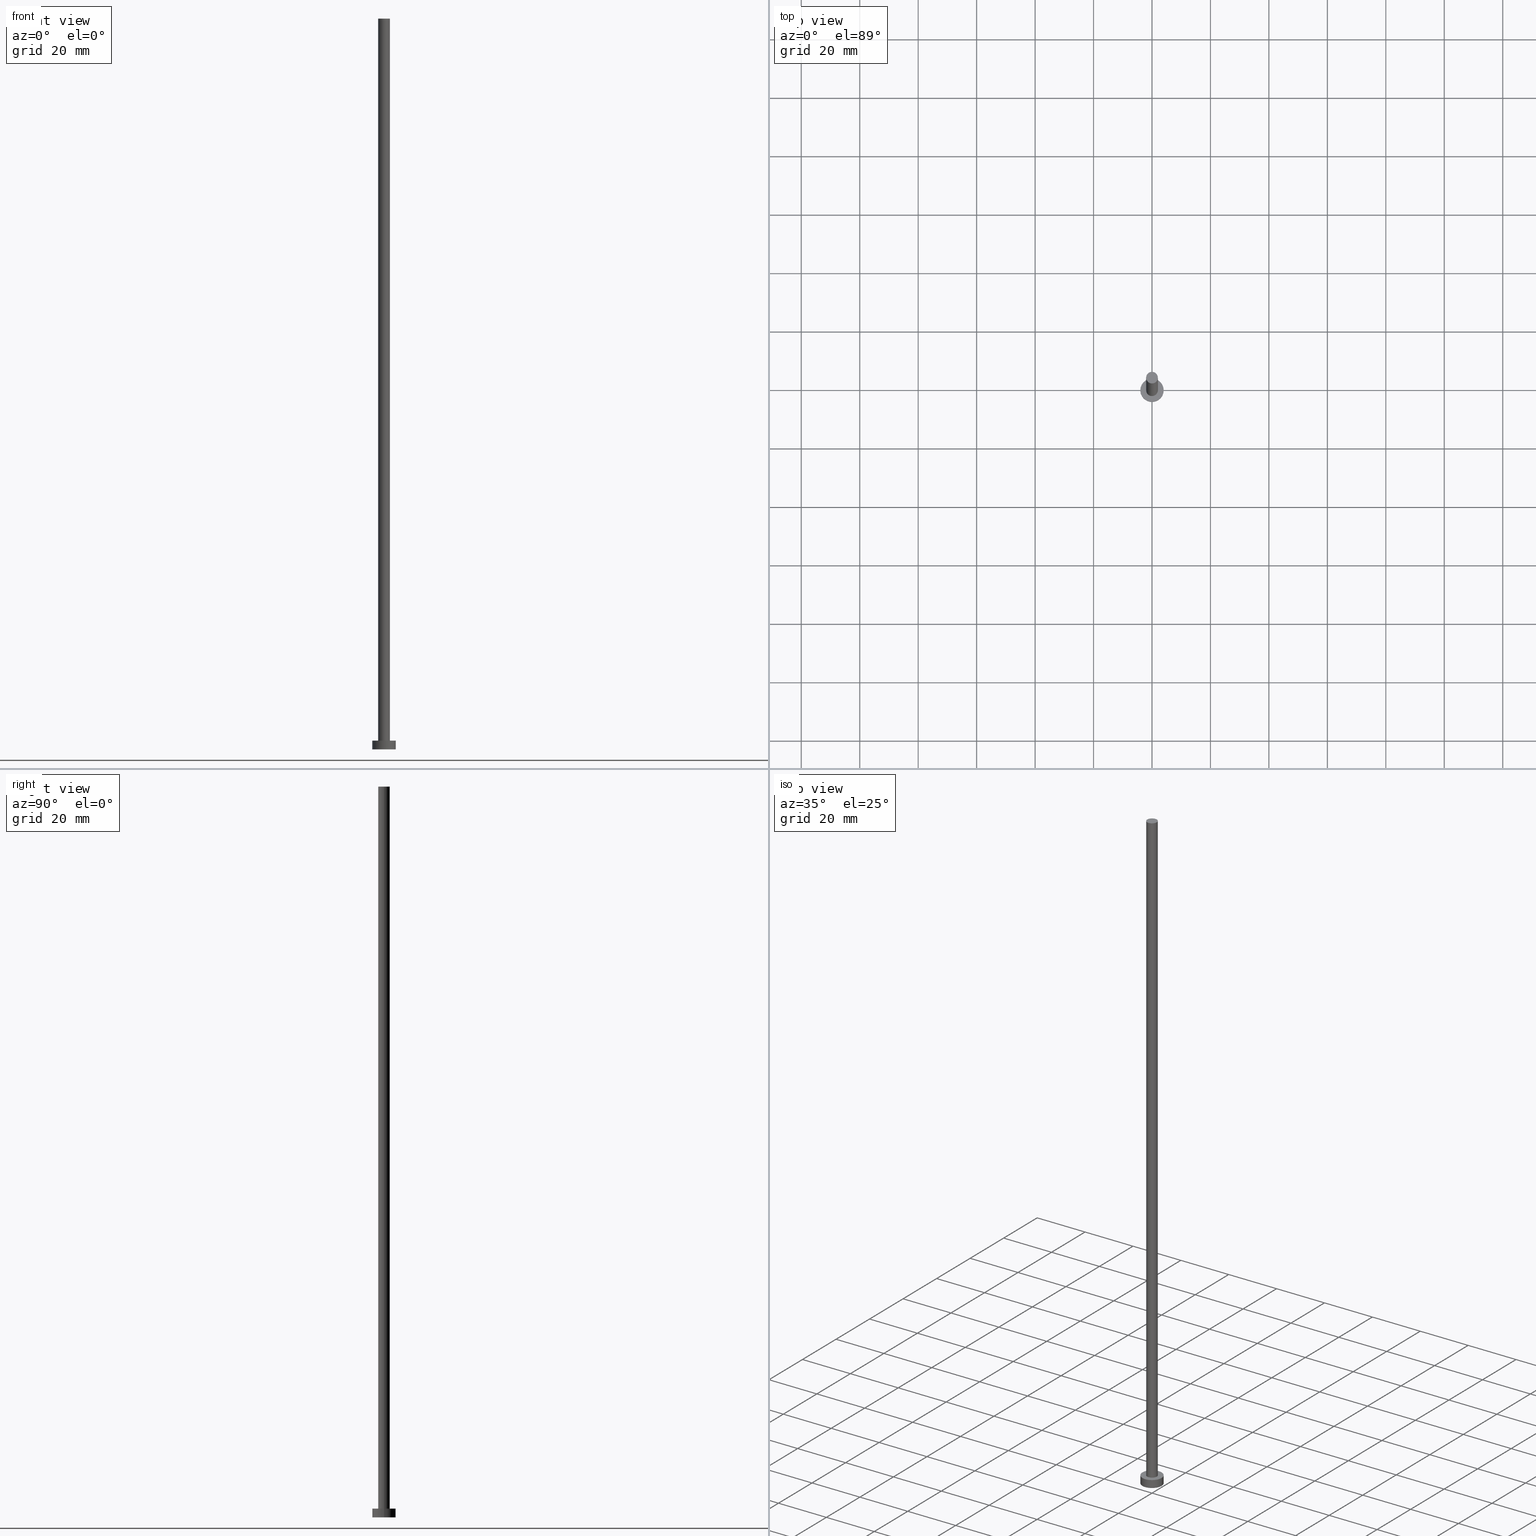
[diagram: canonical four-view strip — front | top / right | iso, engineering-drawing reading convention]
A machine part, canonical four-view strip (front | top / right | iso — engineering-drawing reading convention). The complete STEP part file that produces these views, byte-faithful:
ISO-10303-21;
HEADER;
FILE_DESCRIPTION (( 'STEP AP203' ),
    '1' );
FILE_NAME ('0602.STEP',
    '2023-02-12T12:02:19',
    ( '' ),
    ( '' ),
    'SwSTEP 2.0',
    'SolidWorks 2019',
    '' );
FILE_SCHEMA (( 'CONFIG_CONTROL_DESIGN' ));
ENDSEC;

DATA;
#1 = DIRECTION ( 'NONE',  ( 0.000000000000000000, 0.000000000000000000, 1.000000000000000000 ) ) ;
#2 = DIRECTION ( 'NONE',  ( 1.000000000000000000, 0.000000000000000000, -0.000000000000000000 ) ) ;
#3 = ADVANCED_FACE ( 'NONE', ( #211 ), #88, .T. ) ;
#4 = CYLINDRICAL_SURFACE ( 'NONE', #167, 2.000000000000000000 ) ;
#5 =( NAMED_UNIT ( * ) SI_UNIT ( $, .STERADIAN. ) SOLID_ANGLE_UNIT ( ) );
#6 = VECTOR ( 'NONE', #45, 1000.000000000000000 ) ;
#7 = CIRCLE ( 'NONE', #139, 2.000000000000000000 ) ;
#8 = EDGE_LOOP ( 'NONE', ( #98, #181, #136, #230 ) ) ;
#9 = DATE_TIME_ROLE ( 'creation_date' ) ;
#10 = APPROVAL_DATE_TIME ( #143, #130 ) ;
#11 = CC_DESIGN_PERSON_AND_ORGANIZATION_ASSIGNMENT ( #168, #224, ( #226 ) ) ;
#12 = COORDINATED_UNIVERSAL_TIME_OFFSET ( 1, 0, .AHEAD. ) ;
#13 = PERSON_AND_ORGANIZATION ( #46, #107 ) ;
#14 = CYLINDRICAL_SURFACE ( 'NONE', #171, 4.000000000000000000 ) ;
#15 = DESIGN_CONTEXT ( 'detailed design', #133, 'design' ) ;
#16 = AXIS2_PLACEMENT_3D ( 'NONE', #25, #97, #138 ) ;
#17 = CARTESIAN_POINT ( 'NONE',  ( -4.000000000000000000, 0.000000000000000000, 0.000000000000000000 ) ) ;
#18 = CARTESIAN_POINT ( 'NONE',  ( 2.000000000000000000, 2.449293598294706414E-16, 250.0000000000000000 ) ) ;
#19 = VECTOR ( 'NONE', #232, 1000.000000000000000 ) ;
#20 = EDGE_LOOP ( 'NONE', ( #179, #121 ) ) ;
#21 = VECTOR ( 'NONE', #84, 1000.000000000000000 ) ;
#22 = CARTESIAN_POINT ( 'NONE',  ( -2.000000000000000000, 0.000000000000000000, 250.0000000000000000 ) ) ;
#23 = VERTEX_POINT ( 'NONE', #210 ) ;
#24 = CYLINDRICAL_SURFACE ( 'NONE', #76, 2.000000000000000000 ) ;
#25 = CARTESIAN_POINT ( 'NONE',  ( 0.000000000000000000, 0.000000000000000000, 3.000000000000000000 ) ) ;
#26 = APPROVAL_STATUS ( 'not_yet_approved' ) ;
#27 = PERSON_AND_ORGANIZATION ( #46, #107 ) ;
#28 = CC_DESIGN_APPROVAL ( #174, ( #251 ) ) ;
#29 = APPROVAL ( #81, 'NEUR�EN�' ) ;
#30 = CARTESIAN_POINT ( 'NONE',  ( 0.000000000000000000, 0.000000000000000000, 3.000000000000000000 ) ) ;
#31 = FACE_OUTER_BOUND ( 'NONE', #92, .T. ) ;
#32 = CARTESIAN_POINT ( 'NONE',  ( 0.000000000000000000, 0.000000000000000000, 250.0000000000000000 ) ) ;
#33 = DIRECTION ( 'NONE',  ( 0.000000000000000000, 0.000000000000000000, 1.000000000000000000 ) ) ;
#34 = AXIS2_PLACEMENT_3D ( 'NONE', #54, #1, #182 ) ;
#35 = VERTEX_POINT ( 'NONE', #17 ) ;
#36 = DIRECTION ( 'NONE',  ( -0.000000000000000000, -0.000000000000000000, -1.000000000000000000 ) ) ;
#37 = DIRECTION ( 'NONE',  ( -1.000000000000000000, 0.000000000000000000, 0.000000000000000000 ) ) ;
#38 = CC_DESIGN_DATE_AND_TIME_ASSIGNMENT ( #41, #104, ( #251 ) ) ;
#39 = ORIENTED_EDGE ( 'NONE', *, *, #106, .F. ) ;
#40 = CALENDAR_DATE ( 2023, 12, 2 ) ;
#41 = DATE_AND_TIME ( #77, #69 ) ;
#42 = SHAPE_DEFINITION_REPRESENTATION ( #242, #147 ) ;
#43 = EDGE_CURVE ( 'NONE', #236, #159, #64, .T. ) ;
#44 = ORIENTED_EDGE ( 'NONE', *, *, #225, .F. ) ;
#45 = DIRECTION ( 'NONE',  ( -0.000000000000000000, -0.000000000000000000, -1.000000000000000000 ) ) ;
#46 = PERSON ( 'NEUR�EN�', 'NEUR�EN�', 'NEUR�EN�', ('NEUR�EN�'), ('NEUR�EN�'), ('NEUR�EN�') ) ;
#47 = CC_DESIGN_PERSON_AND_ORGANIZATION_ASSIGNMENT ( #103, #169, ( #59 ) ) ;
#48 = CIRCLE ( 'NONE', #206, 2.000000000000000000 ) ;
#49 = DIRECTION ( 'NONE',  ( 0.000000000000000000, 0.000000000000000000, 1.000000000000000000 ) ) ;
#50 = PLANE ( 'NONE',  #233 ) ;
#51 = CARTESIAN_POINT ( 'NONE',  ( 0.000000000000000000, 0.000000000000000000, 0.000000000000000000 ) ) ;
#52 = CARTESIAN_POINT ( 'NONE',  ( 4.000000000000000000, 4.898587196589412829E-16, 3.000000000000000000 ) ) ;
#53 = ORIENTED_EDGE ( 'NONE', *, *, #95, .F. ) ;
#54 = CARTESIAN_POINT ( 'NONE',  ( 0.000000000000000000, 0.000000000000000000, 3.000000000000000000 ) ) ;
#55 = ORIENTED_EDGE ( 'NONE', *, *, #183, .F. ) ;
#56 = DIRECTION ( 'NONE',  ( -1.000000000000000000, 0.000000000000000000, 0.000000000000000000 ) ) ;
#57 = ORIENTED_EDGE ( 'NONE', *, *, #231, .F. ) ;
#58 = CIRCLE ( 'NONE', #124, 4.000000000000000000 ) ;
#59 = PRODUCT ( '0602', '0602', '', ( #141 ) ) ;
#60 = DIRECTION ( 'NONE',  ( 1.000000000000000000, 0.000000000000000000, 0.000000000000000000 ) ) ;
#61 = ORIENTED_EDGE ( 'NONE', *, *, #123, .T. ) ;
#62 = CALENDAR_DATE ( 2023, 12, 2 ) ;
#63 = CALENDAR_DATE ( 2023, 12, 2 ) ;
#64 = CIRCLE ( 'NONE', #215, 2.000000000000000000 ) ;
#65 = CC_DESIGN_SECURITY_CLASSIFICATION ( #251, ( #226 ) ) ;
#66 = DIRECTION ( 'NONE',  ( 1.000000000000000000, 0.000000000000000000, 0.000000000000000000 ) ) ;
#67 = ADVANCED_FACE ( 'NONE', ( #31 ), #50, .F. ) ;
#68 = DIRECTION ( 'NONE',  ( -1.000000000000000000, 0.000000000000000000, 0.000000000000000000 ) ) ;
#69 = LOCAL_TIME ( 13, 2, 19.00000000000000000, #207 ) ;
#70 = CARTESIAN_POINT ( 'NONE',  ( 0.000000000000000000, 0.000000000000000000, 3.000000000000000000 ) ) ;
#71 = EDGE_LOOP ( 'NONE', ( #101, #55 ) ) ;
#72 = CARTESIAN_POINT ( 'NONE',  ( 0.000000000000000000, 0.000000000000000000, 250.0000000000000000 ) ) ;
#73 = EDGE_CURVE ( 'NONE', #159, #227, #214, .T. ) ;
#74 = DIRECTION ( 'NONE',  ( -0.000000000000000000, -0.000000000000000000, -1.000000000000000000 ) ) ;
#75 =( NAMED_UNIT ( * ) PLANE_ANGLE_UNIT ( ) SI_UNIT ( $, .RADIAN. ) );
#76 = AXIS2_PLACEMENT_3D ( 'NONE', #72, #238, #56 ) ;
#77 = CALENDAR_DATE ( 2023, 12, 2 ) ;
#78 = DATE_AND_TIME ( #40, #140 ) ;
#79 = CIRCLE ( 'NONE', #151, 4.000000000000000000 ) ;
#80 = APPROVAL_PERSON_ORGANIZATION ( #247, #130, #192 ) ;
#81 = APPROVAL_STATUS ( 'not_yet_approved' ) ;
#82 = EDGE_CURVE ( 'NONE', #234, #227, #7, .T. ) ;
#83 = CALENDAR_DATE ( 2023, 12, 2 ) ;
#84 = DIRECTION ( 'NONE',  ( -0.000000000000000000, -0.000000000000000000, -1.000000000000000000 ) ) ;
#85 = LOCAL_TIME ( 13, 2, 19.00000000000000000, #205 ) ;
#86 = ORIENTED_EDGE ( 'NONE', *, *, #113, .F. ) ;
#87 = ADVANCED_FACE ( 'NONE', ( #175, #172 ), #250, .T. ) ;
#88 = CYLINDRICAL_SURFACE ( 'NONE', #223, 4.000000000000000000 ) ;
#89 = CARTESIAN_POINT ( 'NONE',  ( -4.000000000000000000, 0.000000000000000000, 3.000000000000000000 ) ) ;
#90 = EDGE_CURVE ( 'NONE', #119, #150, #58, .T. ) ;
#91 = APPLICATION_CONTEXT ( 'configuration controlled 3d designs of mechanical parts and assemblies' ) ;
#92 = EDGE_LOOP ( 'NONE', ( #53, #161 ) ) ;
#93 = CLOSED_SHELL ( 'NONE', ( #190, #131, #3, #87, #67, #149, #144 ) ) ;
#94 =( LENGTH_UNIT ( ) NAMED_UNIT ( * ) SI_UNIT ( .MILLI., .METRE. ) );
#95 = EDGE_CURVE ( 'NONE', #35, #23, #241, .T. ) ;
#96 = CARTESIAN_POINT ( 'NONE',  ( 0.000000000000000000, 0.000000000000000000, 250.0000000000000000 ) ) ;
#97 = DIRECTION ( 'NONE',  ( 0.000000000000000000, 0.000000000000000000, 1.000000000000000000 ) ) ;
#98 = ORIENTED_EDGE ( 'NONE', *, *, #237, .F. ) ;
#99 = COORDINATED_UNIVERSAL_TIME_OFFSET ( 1, 0, .AHEAD. ) ;
#100 = MANIFOLD_SOLID_BREP ( 'P�idat vysunut�m3', #93 ) ;
#101 = ORIENTED_EDGE ( 'NONE', *, *, #82, .F. ) ;
#102 = PRODUCT_RELATED_PRODUCT_CATEGORY ( 'detail', '', ( #59 ) ) ;
#103 = PERSON_AND_ORGANIZATION ( #46, #107 ) ;
#104 = DATE_TIME_ROLE ( 'classification_date' ) ;
#105 = PERSON_AND_ORGANIZATION_ROLE ( 'creator' ) ;
#106 = EDGE_CURVE ( 'NONE', #236, #234, #153, .T. ) ;
#107 = ORGANIZATION ( 'NEUR�EN�', 'NEUR�EN�', '' ) ;
#108 = PERSON_AND_ORGANIZATION_ROLE ( 'design_supplier' ) ;
#109 = DIRECTION ( 'NONE',  ( 1.000000000000000000, 0.000000000000000000, 0.000000000000000000 ) ) ;
#110 = ORIENTED_EDGE ( 'NONE', *, *, #43, .F. ) ;
#111 = CARTESIAN_POINT ( 'NONE',  ( -2.000000000000000000, 0.000000000000000000, 250.0000000000000000 ) ) ;
#112 = AXIS2_PLACEMENT_3D ( 'NONE', #213, #194, #253 ) ;
#113 = EDGE_CURVE ( 'NONE', #119, #35, #197, .T. ) ;
#114 = APPROVAL_PERSON_ORGANIZATION ( #13, #174, #166 ) ;
#115 = DIRECTION ( 'NONE',  ( -0.000000000000000000, -0.000000000000000000, -1.000000000000000000 ) ) ;
#116 = FACE_OUTER_BOUND ( 'NONE', #185, .T. ) ;
#117 = ORIENTED_EDGE ( 'NONE', *, *, #73, .F. ) ;
#118 = CARTESIAN_POINT ( 'NONE',  ( 0.000000000000000000, 0.000000000000000000, 3.000000000000000000 ) ) ;
#119 = VERTEX_POINT ( 'NONE', #89 ) ;
#120 = VECTOR ( 'NONE', #115, 1000.000000000000000 ) ;
#121 = ORIENTED_EDGE ( 'NONE', *, *, #231, .T. ) ;
#122 = ORIENTED_EDGE ( 'NONE', *, *, #237, .T. ) ;
#123 = EDGE_CURVE ( 'NONE', #23, #35, #79, .T. ) ;
#124 = AXIS2_PLACEMENT_3D ( 'NONE', #252, #148, #228 ) ;
#125 = APPROVAL_ROLE ( '' ) ;
#126 = DATE_AND_TIME ( #63, #85 ) ;
#127 = APPROVAL_STATUS ( 'not_yet_approved' ) ;
#128 = ORIENTED_EDGE ( 'NONE', *, *, #106, .T. ) ;
#129 = LOCAL_TIME ( 13, 2, 19.00000000000000000, #12 ) ;
#130 = APPROVAL ( #26, 'NEUR�EN�' ) ;
#131 = ADVANCED_FACE ( 'NONE', ( #193 ), #14, .T. ) ;
#132 = DIRECTION ( 'NONE',  ( -0.000000000000000000, -0.000000000000000000, -1.000000000000000000 ) ) ;
#133 = APPLICATION_CONTEXT ( 'configuration controlled 3d designs of mechanical parts and assemblies' ) ;
#134 = DIRECTION ( 'NONE',  ( 0.000000000000000000, 0.000000000000000000, 1.000000000000000000 ) ) ;
#135 = PLANE ( 'NONE',  #249 ) ;
#136 = ORIENTED_EDGE ( 'NONE', *, *, #113, .T. ) ;
#137 = ORIENTED_EDGE ( 'NONE', *, *, #73, .T. ) ;
#138 = DIRECTION ( 'NONE',  ( 1.000000000000000000, 0.000000000000000000, 0.000000000000000000 ) ) ;
#139 = AXIS2_PLACEMENT_3D ( 'NONE', #70, #49, #66 ) ;
#140 = LOCAL_TIME ( 13, 2, 19.00000000000000000, #99 ) ;
#141 = MECHANICAL_CONTEXT ( 'NONE', #91, 'mechanical' ) ;
#142 = PERSON_AND_ORGANIZATION ( #46, #107 ) ;
#143 = DATE_AND_TIME ( #62, #129 ) ;
#144 = ADVANCED_FACE ( 'NONE', ( #220 ), #135, .T. ) ;
#145 = PERSON_AND_ORGANIZATION_ROLE ( 'classification_officer' ) ;
#146 = DATE_AND_TIME ( #83, #221 ) ;
#147 = ADVANCED_BREP_SHAPE_REPRESENTATION ( '0602', ( #100, #203 ), #180 ) ;
#148 = DIRECTION ( 'NONE',  ( 0.000000000000000000, 0.000000000000000000, 1.000000000000000000 ) ) ;
#149 = ADVANCED_FACE ( 'NONE', ( #178 ), #24, .T. ) ;
#150 = VERTEX_POINT ( 'NONE', #222 ) ;
#151 = AXIS2_PLACEMENT_3D ( 'NONE', #51, #134, #216 ) ;
#152 = CIRCLE ( 'NONE', #34, 2.000000000000000000 ) ;
#153 = LINE ( 'NONE', #111, #6 ) ;
#154 = CARTESIAN_POINT ( 'NONE',  ( -4.000000000000000000, 0.000000000000000000, 3.000000000000000000 ) ) ;
#155 = CARTESIAN_POINT ( 'NONE',  ( 0.000000000000000000, 0.000000000000000000, 250.0000000000000000 ) ) ;
#156 = ORIENTED_EDGE ( 'NONE', *, *, #82, .T. ) ;
#157 = CIRCLE ( 'NONE', #16, 4.000000000000000000 ) ;
#158 = CARTESIAN_POINT ( 'NONE',  ( 2.000000000000000000, 2.449293598294706414E-16, 250.0000000000000000 ) ) ;
#159 = VERTEX_POINT ( 'NONE', #158 ) ;
#160 = CARTESIAN_POINT ( 'NONE',  ( 0.000000000000000000, 0.000000000000000000, 0.000000000000000000 ) ) ;
#161 = ORIENTED_EDGE ( 'NONE', *, *, #123, .F. ) ;
#162 = CARTESIAN_POINT ( 'NONE',  ( 0.000000000000000000, 0.000000000000000000, 250.0000000000000000 ) ) ;
#163 = CC_DESIGN_PERSON_AND_ORGANIZATION_ASSIGNMENT ( #27, #105, ( #204 ) ) ;
#164 = ORIENTED_EDGE ( 'NONE', *, *, #225, .T. ) ;
#165 = APPROVAL_DATE_TIME ( #126, #29 ) ;
#166 = APPROVAL_ROLE ( '' ) ;
#167 = AXIS2_PLACEMENT_3D ( 'NONE', #162, #36, #37 ) ;
#168 = PERSON_AND_ORGANIZATION ( #46, #107 ) ;
#169 = PERSON_AND_ORGANIZATION_ROLE ( 'design_owner' ) ;
#170 = CC_DESIGN_PERSON_AND_ORGANIZATION_ASSIGNMENT ( #142, #145, ( #251 ) ) ;
#171 = AXIS2_PLACEMENT_3D ( 'NONE', #118, #74, #235 ) ;
#172 = FACE_OUTER_BOUND ( 'NONE', #20, .T. ) ;
#173 = CARTESIAN_POINT ( 'NONE',  ( 0.000000000000000000, 0.000000000000000000, 0.000000000000000000 ) ) ;
#174 = APPROVAL ( #127, 'NEUR�EN�' ) ;
#175 = FACE_BOUND ( 'NONE', #71, .T. ) ;
#176 = DIRECTION ( 'NONE',  ( 0.000000000000000000, 0.000000000000000000, 1.000000000000000000 ) ) ;
#177 = CARTESIAN_POINT ( 'NONE',  ( 2.000000000000000000, 2.449293598294706414E-16, 3.000000000000000000 ) ) ;
#178 = FACE_OUTER_BOUND ( 'NONE', #200, .T. ) ;
#179 = ORIENTED_EDGE ( 'NONE', *, *, #90, .T. ) ;
#180 =( GEOMETRIC_REPRESENTATION_CONTEXT ( 3 ) GLOBAL_UNCERTAINTY_ASSIGNED_CONTEXT ( ( #187 ) ) GLOBAL_UNIT_ASSIGNED_CONTEXT ( ( #94, #75, #5 ) ) REPRESENTATION_CONTEXT ( 'NONE', 'WORKASPACE' ) );
#181 = ORIENTED_EDGE ( 'NONE', *, *, #90, .F. ) ;
#182 = DIRECTION ( 'NONE',  ( 1.000000000000000000, 0.000000000000000000, 0.000000000000000000 ) ) ;
#183 = EDGE_CURVE ( 'NONE', #227, #234, #152, .T. ) ;
#184 = DIRECTION ( 'NONE',  ( 1.000000000000000000, 0.000000000000000000, 0.000000000000000000 ) ) ;
#185 = EDGE_LOOP ( 'NONE', ( #44, #137, #217, #39 ) ) ;
#186 = CC_DESIGN_APPROVAL ( #130, ( #204 ) ) ;
#187 = UNCERTAINTY_MEASURE_WITH_UNIT (LENGTH_MEASURE( 1.000000000000000082E-05 ), #94, 'distance_accuracy_value', 'NONE');
#188 = PERSON_AND_ORGANIZATION ( #46, #107 ) ;
#189 = APPLICATION_PROTOCOL_DEFINITION ( 'international standard', 'config_control_design', 1994, #133 ) ;
#190 = ADVANCED_FACE ( 'NONE', ( #116 ), #4, .T. ) ;
#191 = APPROVAL_PERSON_ORGANIZATION ( #188, #29, #125 ) ;
#192 = APPROVAL_ROLE ( '' ) ;
#193 = FACE_OUTER_BOUND ( 'NONE', #218, .T. ) ;
#194 = DIRECTION ( 'NONE',  ( 0.000000000000000000, 0.000000000000000000, 1.000000000000000000 ) ) ;
#195 = DIRECTION ( 'NONE',  ( 0.000000000000000000, 0.000000000000000000, 1.000000000000000000 ) ) ;
#196 = DIRECTION ( 'NONE',  ( 1.000000000000000000, 0.000000000000000000, -0.000000000000000000 ) ) ;
#197 = LINE ( 'NONE', #154, #19 ) ;
#198 = LINE ( 'NONE', #52, #120 ) ;
#199 = APPLICATION_PROTOCOL_DEFINITION ( 'international standard', 'config_control_design', 1994, #91 ) ;
#200 = EDGE_LOOP ( 'NONE', ( #117, #110, #128, #156 ) ) ;
#201 = CARTESIAN_POINT ( 'NONE',  ( -2.000000000000000000, 0.000000000000000000, 3.000000000000000000 ) ) ;
#202 = AXIS2_PLACEMENT_3D ( 'NONE', #254, #176, #229 ) ;
#203 = AXIS2_PLACEMENT_3D ( 'NONE', #160, #243, #60 ) ;
#204 = PRODUCT_DEFINITION ( 'NEZN�M�', '', #226, #15 ) ;
#205 = COORDINATED_UNIVERSAL_TIME_OFFSET ( 1, 0, .AHEAD. ) ;
#206 = AXIS2_PLACEMENT_3D ( 'NONE', #155, #240, #184 ) ;
#207 = COORDINATED_UNIVERSAL_TIME_OFFSET ( 1, 0, .AHEAD. ) ;
#208 = SECURITY_CLASSIFICATION_LEVEL ( 'unclassified' ) ;
#209 = PERSON_AND_ORGANIZATION ( #46, #107 ) ;
#210 = CARTESIAN_POINT ( 'NONE',  ( 4.000000000000000000, 4.898587196589412829E-16, 0.000000000000000000 ) ) ;
#211 = FACE_OUTER_BOUND ( 'NONE', #8, .T. ) ;
#212 = CC_DESIGN_APPROVAL ( #29, ( #226 ) ) ;
#213 = CARTESIAN_POINT ( 'NONE',  ( 0.000000000000000000, 0.000000000000000000, 3.000000000000000000 ) ) ;
#214 = LINE ( 'NONE', #18, #21 ) ;
#215 = AXIS2_PLACEMENT_3D ( 'NONE', #32, #195, #109 ) ;
#216 = DIRECTION ( 'NONE',  ( 1.000000000000000000, 0.000000000000000000, 0.000000000000000000 ) ) ;
#217 = ORIENTED_EDGE ( 'NONE', *, *, #183, .T. ) ;
#218 = EDGE_LOOP ( 'NONE', ( #57, #122, #61, #86 ) ) ;
#219 = CC_DESIGN_PERSON_AND_ORGANIZATION_ASSIGNMENT ( #209, #108, ( #226 ) ) ;
#220 = FACE_OUTER_BOUND ( 'NONE', #239, .T. ) ;
#221 = LOCAL_TIME ( 13, 2, 19.00000000000000000, #245 ) ;
#222 = CARTESIAN_POINT ( 'NONE',  ( 4.000000000000000000, 4.898587196589412829E-16, 3.000000000000000000 ) ) ;
#223 = AXIS2_PLACEMENT_3D ( 'NONE', #30, #132, #68 ) ;
#224 = PERSON_AND_ORGANIZATION_ROLE ( 'creator' ) ;
#225 = EDGE_CURVE ( 'NONE', #159, #236, #48, .T. ) ;
#226 = PRODUCT_DEFINITION_FORMATION_WITH_SPECIFIED_SOURCE ( 'LIBOVOLN�', '', #59, .NOT_KNOWN. ) ;
#227 = VERTEX_POINT ( 'NONE', #177 ) ;
#228 = DIRECTION ( 'NONE',  ( 1.000000000000000000, 0.000000000000000000, 0.000000000000000000 ) ) ;
#229 = DIRECTION ( 'NONE',  ( 1.000000000000000000, 0.000000000000000000, 0.000000000000000000 ) ) ;
#230 = ORIENTED_EDGE ( 'NONE', *, *, #95, .T. ) ;
#231 = EDGE_CURVE ( 'NONE', #150, #119, #157, .T. ) ;
#232 = DIRECTION ( 'NONE',  ( -0.000000000000000000, -0.000000000000000000, -1.000000000000000000 ) ) ;
#233 = AXIS2_PLACEMENT_3D ( 'NONE', #173, #255, #196 ) ;
#234 = VERTEX_POINT ( 'NONE', #201 ) ;
#235 = DIRECTION ( 'NONE',  ( -1.000000000000000000, 0.000000000000000000, 0.000000000000000000 ) ) ;
#236 = VERTEX_POINT ( 'NONE', #22 ) ;
#237 = EDGE_CURVE ( 'NONE', #150, #23, #198, .T. ) ;
#238 = DIRECTION ( 'NONE',  ( -0.000000000000000000, -0.000000000000000000, -1.000000000000000000 ) ) ;
#239 = EDGE_LOOP ( 'NONE', ( #244, #164 ) ) ;
#240 = DIRECTION ( 'NONE',  ( 0.000000000000000000, 0.000000000000000000, 1.000000000000000000 ) ) ;
#241 = CIRCLE ( 'NONE', #202, 4.000000000000000000 ) ;
#242 = PRODUCT_DEFINITION_SHAPE ( 'NONE', 'NONE',  #204 ) ;
#243 = DIRECTION ( 'NONE',  ( 0.000000000000000000, 0.000000000000000000, 1.000000000000000000 ) ) ;
#244 = ORIENTED_EDGE ( 'NONE', *, *, #43, .T. ) ;
#245 = COORDINATED_UNIVERSAL_TIME_OFFSET ( 1, 0, .AHEAD. ) ;
#246 = CC_DESIGN_DATE_AND_TIME_ASSIGNMENT ( #78, #9, ( #204 ) ) ;
#247 = PERSON_AND_ORGANIZATION ( #46, #107 ) ;
#248 = APPROVAL_DATE_TIME ( #146, #174 ) ;
#249 = AXIS2_PLACEMENT_3D ( 'NONE', #96, #33, #2 ) ;
#250 = PLANE ( 'NONE',  #112 ) ;
#251 = SECURITY_CLASSIFICATION ( '', '', #208 ) ;
#252 = CARTESIAN_POINT ( 'NONE',  ( 0.000000000000000000, 0.000000000000000000, 3.000000000000000000 ) ) ;
#253 = DIRECTION ( 'NONE',  ( 1.000000000000000000, 0.000000000000000000, -0.000000000000000000 ) ) ;
#254 = CARTESIAN_POINT ( 'NONE',  ( 0.000000000000000000, 0.000000000000000000, 0.000000000000000000 ) ) ;
#255 = DIRECTION ( 'NONE',  ( 0.000000000000000000, 0.000000000000000000, 1.000000000000000000 ) ) ;
ENDSEC;
END-ISO-10303-21;
